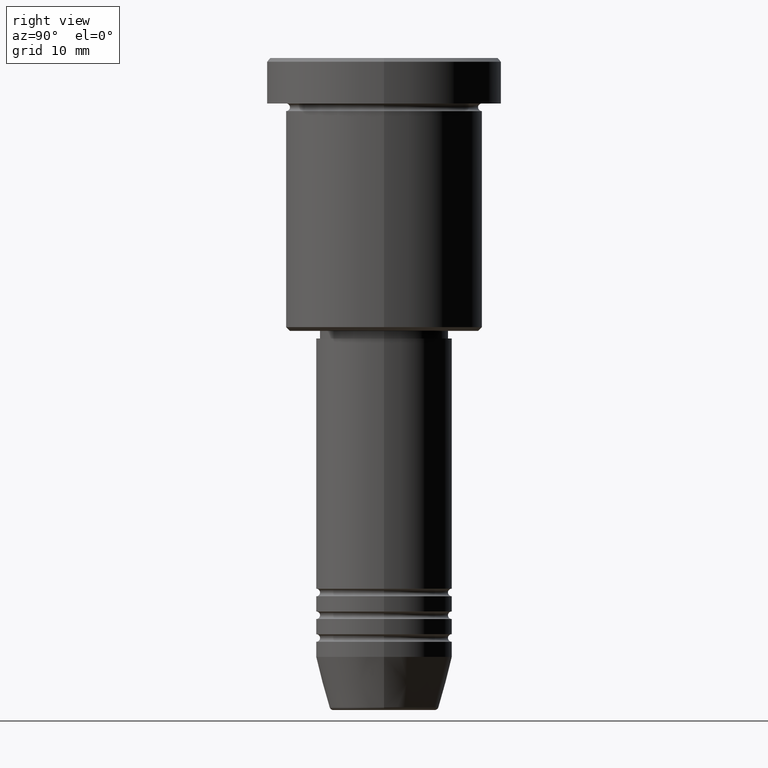
[diagram: clean part render]
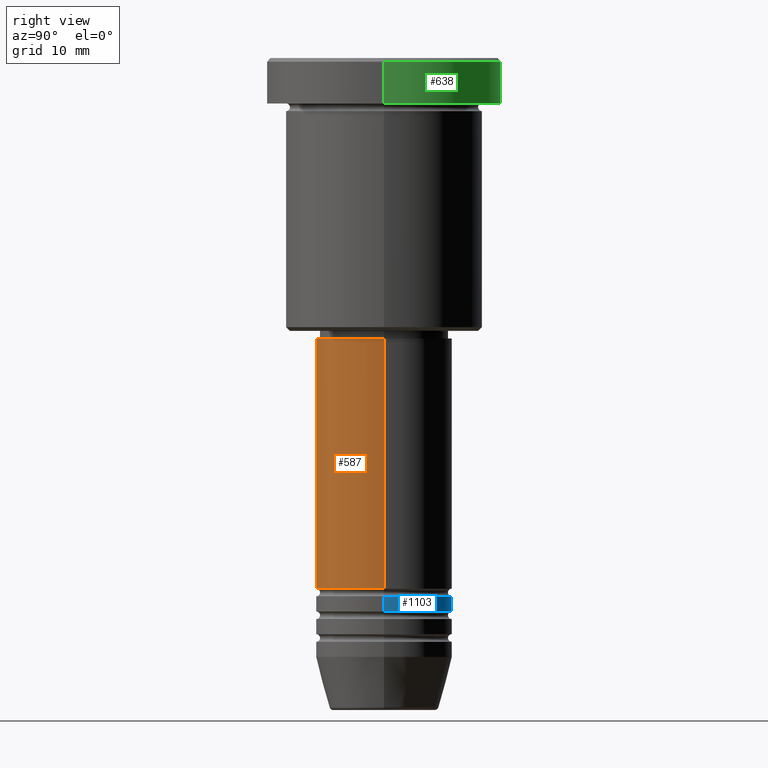
[diagram: same view with three faces highlighted in distinct colors, each labeled with its STEP entity id]
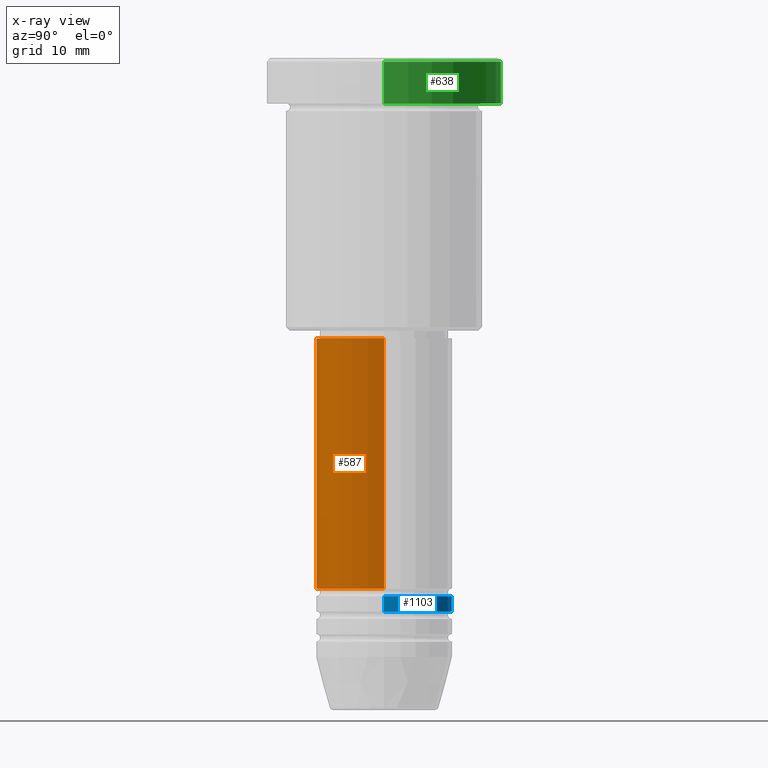
[diagram: x-ray of the same camera — body ghosted, the three highlighted faces saturated]
A machine part, right view with three faces highlighted in distinct colors.
The next image is the same camera in x-ray (body ghosted, the three faces saturated) — at least one of them is partly hidden behind the body in this view.
Their STEP definitions:

[orange] entity #587 — the highlighted cylindrical surface (partial cylindrical patch) has radius 9 mm, axis along (-0, -0, 1).
#4 = CARTESIAN_POINT ( 'NONE',  ( -9.000000000000000000, 1.102182119232617714E-15, -69.99999999999998579 ) ) ;
#15 = CARTESIAN_POINT ( 'NONE',  ( 9.000000000000000000, 0.000000000000000000, -69.99999999999998579 ) ) ;
#37 = ORIENTED_EDGE ( 'NONE', *, *, #469, .T. ) ;
#41 = LINE ( 'NONE', #957, #1057 ) ;
#76 = DIRECTION ( 'NONE',  ( 1.000000000000000000, 0.000000000000000000, 0.000000000000000000 ) ) ;
#143 = AXIS2_PLACEMENT_3D ( 'NONE', #259, #1167, #76 ) ;
#145 = EDGE_CURVE ( 'NONE', #893, #875, #903, .T. ) ;
#165 = FACE_OUTER_BOUND ( 'NONE', #993, .T. ) ;
#168 = DIRECTION ( 'NONE',  ( 1.000000000000000000, 0.000000000000000000, 0.000000000000000000 ) ) ;
#169 = CARTESIAN_POINT ( 'NONE',  ( 0.000000000000000000, 0.000000000000000000, -69.99999999999998579 ) ) ;
#217 = AXIS2_PLACEMENT_3D ( 'NONE', #630, #241, #168 ) ;
#241 = DIRECTION ( 'NONE',  ( -0.000000000000000000, -0.000000000000000000, 1.000000000000000000 ) ) ;
#254 = EDGE_CURVE ( 'NONE', #889, #893, #934, .T. ) ;
#259 = CARTESIAN_POINT ( 'NONE',  ( 0.000000000000000000, 0.000000000000000000, 0.000000000000000000 ) ) ;
#265 = CYLINDRICAL_SURFACE ( 'NONE', #143, 9.000000000000000000 ) ;
#372 = ORIENTED_EDGE ( 'NONE', *, *, #254, .F. ) ;
#390 = CARTESIAN_POINT ( 'NONE',  ( 9.000000000000000000, 0.000000000000000000, -36.99999999999998579 ) ) ;
#469 = EDGE_CURVE ( 'NONE', #672, #875, #41, .T. ) ;
#478 = CIRCLE ( 'NONE', #956, 9.000000000000000000 ) ;
#533 = CARTESIAN_POINT ( 'NONE',  ( -9.000000000000000000, 1.102182119232617714E-15, -36.99999999999998579 ) ) ;
#587 = ADVANCED_FACE ( 'NONE', ( #165 ), #265, .T. ) ;
#630 = CARTESIAN_POINT ( 'NONE',  ( 0.000000000000000000, 0.000000000000000000, -36.99999999999998579 ) ) ;
#665 = DIRECTION ( 'NONE',  ( -0.000000000000000000, -0.000000000000000000, 1.000000000000000000 ) ) ;
#672 = VERTEX_POINT ( 'NONE', #15 ) ;
#703 = DIRECTION ( 'NONE',  ( 1.000000000000000000, 0.000000000000000000, 0.000000000000000000 ) ) ;
#788 = ORIENTED_EDGE ( 'NONE', *, *, #145, .F. ) ;
#842 = CARTESIAN_POINT ( 'NONE',  ( -9.000000000000000000, 1.102182119232617714E-15, 0.000000000000000000 ) ) ;
#875 = VERTEX_POINT ( 'NONE', #390 ) ;
#880 = ORIENTED_EDGE ( 'NONE', *, *, #1037, .T. ) ;
#889 = VERTEX_POINT ( 'NONE', #4 ) ;
#893 = VERTEX_POINT ( 'NONE', #533 ) ;
#903 = CIRCLE ( 'NONE', #217, 9.000000000000000000 ) ;
#934 = LINE ( 'NONE', #842, #1036 ) ;
#956 = AXIS2_PLACEMENT_3D ( 'NONE', #169, #996, #703 ) ;
#957 = CARTESIAN_POINT ( 'NONE',  ( 9.000000000000000000, 0.000000000000000000, 0.000000000000000000 ) ) ;
#993 = EDGE_LOOP ( 'NONE', ( #372, #880, #37, #788 ) ) ;
#996 = DIRECTION ( 'NONE',  ( -0.000000000000000000, -0.000000000000000000, 1.000000000000000000 ) ) ;
#1036 = VECTOR ( 'NONE', #665, 1000.000000000000000 ) ;
#1037 = EDGE_CURVE ( 'NONE', #889, #672, #478, .T. ) ;
#1057 = VECTOR ( 'NONE', #1133, 1000.000000000000000 ) ;
#1133 = DIRECTION ( 'NONE',  ( -0.000000000000000000, -0.000000000000000000, 1.000000000000000000 ) ) ;
#1167 = DIRECTION ( 'NONE',  ( -0.000000000000000000, -0.000000000000000000, 1.000000000000000000 ) ) ;

[blue] entity #1103 — the highlighted cylindrical surface (partial cylindrical patch) has radius 9 mm, axis along (-0, -0, 1).
#36 = EDGE_CURVE ( 'NONE', #100, #436, #374, .T. ) ;
#69 = DIRECTION ( 'NONE',  ( -0.000000000000000000, -0.000000000000000000, 1.000000000000000000 ) ) ;
#92 = EDGE_CURVE ( 'NONE', #782, #100, #793, .T. ) ;
#94 = AXIS2_PLACEMENT_3D ( 'NONE', #815, #363, #1003 ) ;
#100 = VERTEX_POINT ( 'NONE', #994 ) ;
#164 = DIRECTION ( 'NONE',  ( -0.000000000000000000, -0.000000000000000000, 1.000000000000000000 ) ) ;
#173 = ORIENTED_EDGE ( 'NONE', *, *, #36, .T. ) ;
#184 = EDGE_CURVE ( 'NONE', #782, #505, #441, .T. ) ;
#281 = DIRECTION ( 'NONE',  ( -0.000000000000000000, -0.000000000000000000, 1.000000000000000000 ) ) ;
#307 = DIRECTION ( 'NONE',  ( 1.000000000000000000, 0.000000000000000000, 0.000000000000000000 ) ) ;
#339 = EDGE_LOOP ( 'NONE', ( #353, #173, #591, #1063 ) ) ;
#353 = ORIENTED_EDGE ( 'NONE', *, *, #92, .T. ) ;
#363 = DIRECTION ( 'NONE',  ( -0.000000000000000000, -0.000000000000000000, 1.000000000000000000 ) ) ;
#374 = LINE ( 'NONE', #539, #985 ) ;
#410 = CARTESIAN_POINT ( 'NONE',  ( 9.000000000000000000, 0.000000000000000000, -72.99999999999998579 ) ) ;
#436 = VERTEX_POINT ( 'NONE', #519 ) ;
#441 = LINE ( 'NONE', #969, #887 ) ;
#505 = VERTEX_POINT ( 'NONE', #818 ) ;
#519 = CARTESIAN_POINT ( 'NONE',  ( -9.000000000000000000, 1.102182119232617714E-15, -70.99999999999998579 ) ) ;
#539 = CARTESIAN_POINT ( 'NONE',  ( -9.000000000000000000, 1.102182119232617714E-15, 0.000000000000000000 ) ) ;
#552 = EDGE_CURVE ( 'NONE', #505, #436, #632, .T. ) ;
#591 = ORIENTED_EDGE ( 'NONE', *, *, #552, .F. ) ;
#632 = CIRCLE ( 'NONE', #932, 9.000000000000000000 ) ;
#646 = DIRECTION ( 'NONE',  ( 1.000000000000000000, 0.000000000000000000, 0.000000000000000000 ) ) ;
#681 = FACE_OUTER_BOUND ( 'NONE', #339, .T. ) ;
#693 = AXIS2_PLACEMENT_3D ( 'NONE', #947, #942, #307 ) ;
#782 = VERTEX_POINT ( 'NONE', #410 ) ;
#793 = CIRCLE ( 'NONE', #94, 9.000000000000000000 ) ;
#815 = CARTESIAN_POINT ( 'NONE',  ( 0.000000000000000000, 0.000000000000000000, -72.99999999999998579 ) ) ;
#818 = CARTESIAN_POINT ( 'NONE',  ( 9.000000000000000000, 0.000000000000000000, -70.99999999999998579 ) ) ;
#857 = CYLINDRICAL_SURFACE ( 'NONE', #693, 9.000000000000000000 ) ;
#887 = VECTOR ( 'NONE', #164, 1000.000000000000000 ) ;
#932 = AXIS2_PLACEMENT_3D ( 'NONE', #1096, #281, #646 ) ;
#942 = DIRECTION ( 'NONE',  ( -0.000000000000000000, -0.000000000000000000, 1.000000000000000000 ) ) ;
#947 = CARTESIAN_POINT ( 'NONE',  ( 0.000000000000000000, 0.000000000000000000, 0.000000000000000000 ) ) ;
#969 = CARTESIAN_POINT ( 'NONE',  ( 9.000000000000000000, 0.000000000000000000, 0.000000000000000000 ) ) ;
#985 = VECTOR ( 'NONE', #69, 1000.000000000000000 ) ;
#994 = CARTESIAN_POINT ( 'NONE',  ( -9.000000000000000000, 1.102182119232617714E-15, -72.99999999999998579 ) ) ;
#1003 = DIRECTION ( 'NONE',  ( 1.000000000000000000, 0.000000000000000000, 0.000000000000000000 ) ) ;
#1063 = ORIENTED_EDGE ( 'NONE', *, *, #184, .F. ) ;
#1096 = CARTESIAN_POINT ( 'NONE',  ( 0.000000000000000000, 0.000000000000000000, -70.99999999999998579 ) ) ;
#1103 = ADVANCED_FACE ( 'NONE', ( #681 ), #857, .T. ) ;

[green] entity #638 — the highlighted cylindrical surface (partial cylindrical patch) has radius 15.5 mm, axis along (-0, -0, 1).
#3 = DIRECTION ( 'NONE',  ( -0.000000000000000000, -0.000000000000000000, 1.000000000000000000 ) ) ;
#13 = CARTESIAN_POINT ( 'NONE',  ( 15.50000000000000000, 0.000000000000000000, -0.5000000000000125455 ) ) ;
#38 = CARTESIAN_POINT ( 'NONE',  ( -15.50000000000000000, 1.898202538678397557E-15, -5.999999999999995559 ) ) ;
#71 = CIRCLE ( 'NONE', #915, 15.50000000000000000 ) ;
#122 = DIRECTION ( 'NONE',  ( 0.000000000000000000, 0.000000000000000000, -1.000000000000000000 ) ) ;
#163 = ORIENTED_EDGE ( 'NONE', *, *, #877, .T. ) ;
#228 = VERTEX_POINT ( 'NONE', #658 ) ;
#270 = VERTEX_POINT ( 'NONE', #13 ) ;
#294 = DIRECTION ( 'NONE',  ( -0.000000000000000000, -0.000000000000000000, 1.000000000000000000 ) ) ;
#304 = DIRECTION ( 'NONE',  ( -0.000000000000000000, -0.000000000000000000, 1.000000000000000000 ) ) ;
#316 = AXIS2_PLACEMENT_3D ( 'NONE', #471, #304, #1113 ) ;
#343 = CYLINDRICAL_SURFACE ( 'NONE', #1160, 15.50000000000000000 ) ;
#386 = EDGE_CURVE ( 'NONE', #958, #779, #644, .T. ) ;
#425 = ORIENTED_EDGE ( 'NONE', *, *, #966, .T. ) ;
#454 = CARTESIAN_POINT ( 'NONE',  ( 0.000000000000000000, 0.000000000000000000, 0.000000000000000000 ) ) ;
#471 = CARTESIAN_POINT ( 'NONE',  ( 0.000000000000000000, 0.000000000000000000, -5.999999999999995559 ) ) ;
#525 = DIRECTION ( 'NONE',  ( 1.000000000000000000, 0.000000000000000000, 0.000000000000000000 ) ) ;
#637 = VECTOR ( 'NONE', #3, 1000.000000000000000 ) ;
#638 = ADVANCED_FACE ( 'NONE', ( #732 ), #343, .T. ) ;
#644 = CIRCLE ( 'NONE', #316, 15.50000000000000000 ) ;
#648 = ORIENTED_EDGE ( 'NONE', *, *, #386, .T. ) ;
#658 = CARTESIAN_POINT ( 'NONE',  ( -15.50000000000000000, 1.898202538678397557E-15, -0.5000000000000125455 ) ) ;
#676 = VECTOR ( 'NONE', #294, 1000.000000000000000 ) ;
#732 = FACE_OUTER_BOUND ( 'NONE', #1031, .T. ) ;
#755 = CARTESIAN_POINT ( 'NONE',  ( -15.50000000000000000, 1.898202538678397557E-15, 0.000000000000000000 ) ) ;
#779 = VERTEX_POINT ( 'NONE', #38 ) ;
#830 = LINE ( 'NONE', #1028, #637 ) ;
#850 = LINE ( 'NONE', #755, #676 ) ;
#860 = DIRECTION ( 'NONE',  ( 1.000000000000000000, 0.000000000000000000, 0.000000000000000000 ) ) ;
#877 = EDGE_CURVE ( 'NONE', #228, #270, #71, .T. ) ;
#879 = ORIENTED_EDGE ( 'NONE', *, *, #920, .F. ) ;
#915 = AXIS2_PLACEMENT_3D ( 'NONE', #945, #122, #860 ) ;
#920 = EDGE_CURVE ( 'NONE', #958, #270, #830, .T. ) ;
#923 = CARTESIAN_POINT ( 'NONE',  ( 15.50000000000000000, 0.000000000000000000, -5.999999999999995559 ) ) ;
#945 = CARTESIAN_POINT ( 'NONE',  ( 0.000000000000000000, 0.000000000000000000, -0.5000000000000125455 ) ) ;
#958 = VERTEX_POINT ( 'NONE', #923 ) ;
#966 = EDGE_CURVE ( 'NONE', #779, #228, #850, .T. ) ;
#995 = DIRECTION ( 'NONE',  ( -0.000000000000000000, -0.000000000000000000, 1.000000000000000000 ) ) ;
#1028 = CARTESIAN_POINT ( 'NONE',  ( 15.50000000000000000, 0.000000000000000000, 0.000000000000000000 ) ) ;
#1031 = EDGE_LOOP ( 'NONE', ( #648, #425, #163, #879 ) ) ;
#1113 = DIRECTION ( 'NONE',  ( 1.000000000000000000, 0.000000000000000000, 0.000000000000000000 ) ) ;
#1160 = AXIS2_PLACEMENT_3D ( 'NONE', #454, #995, #525 ) ;